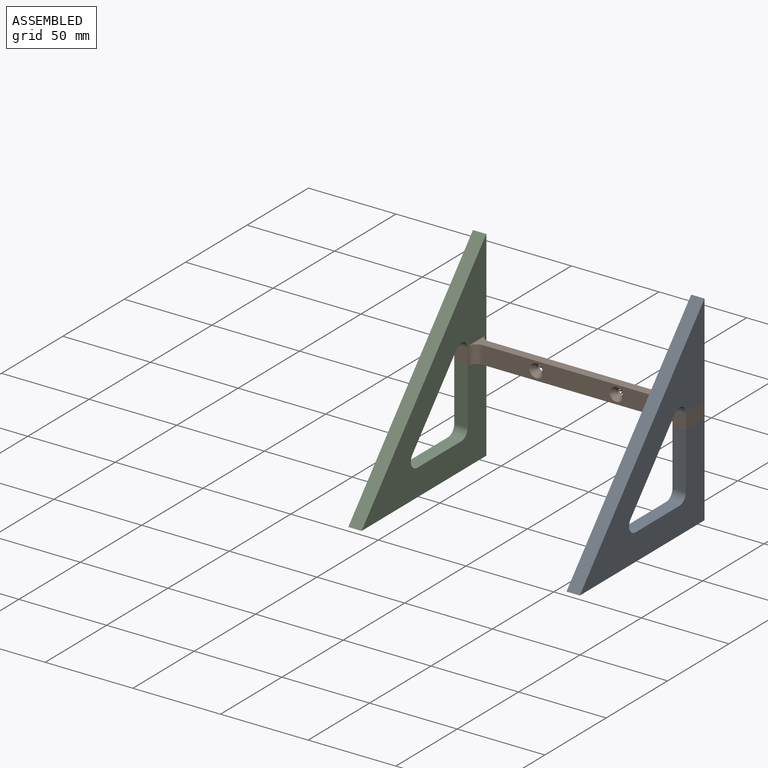
[diagram: assembled view]
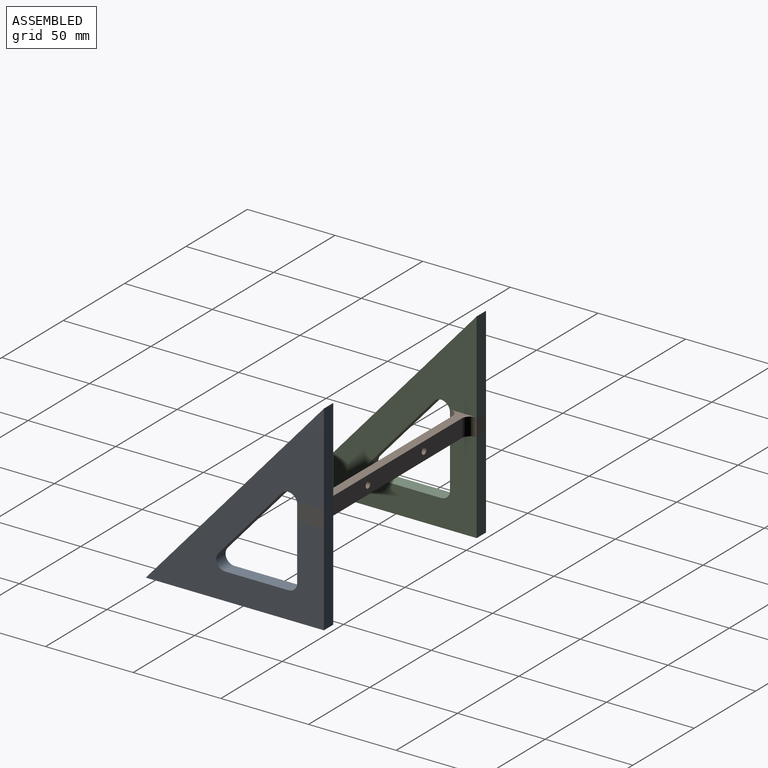
[diagram: assembled view, second angle]
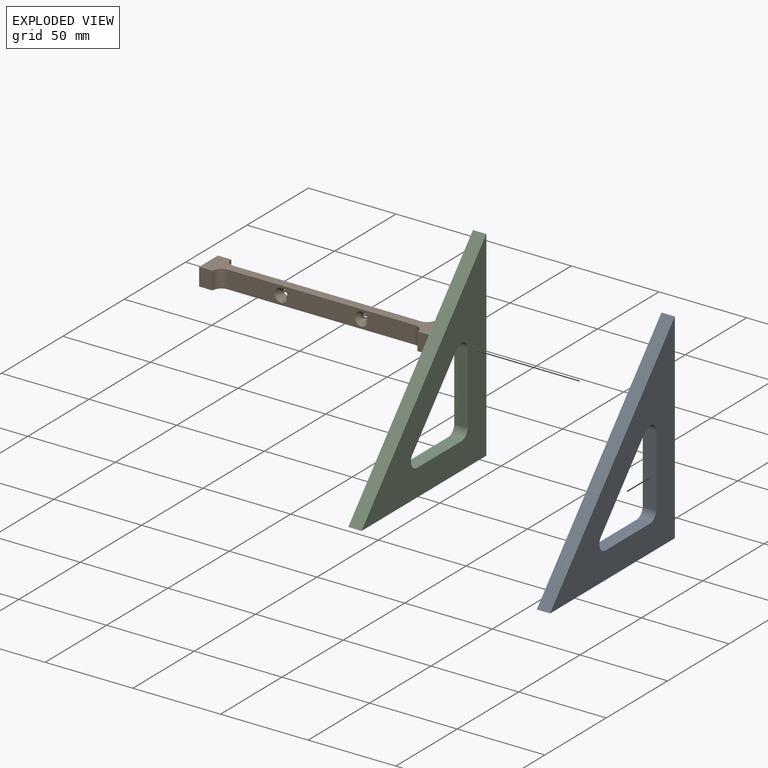
[diagram: exploded view]
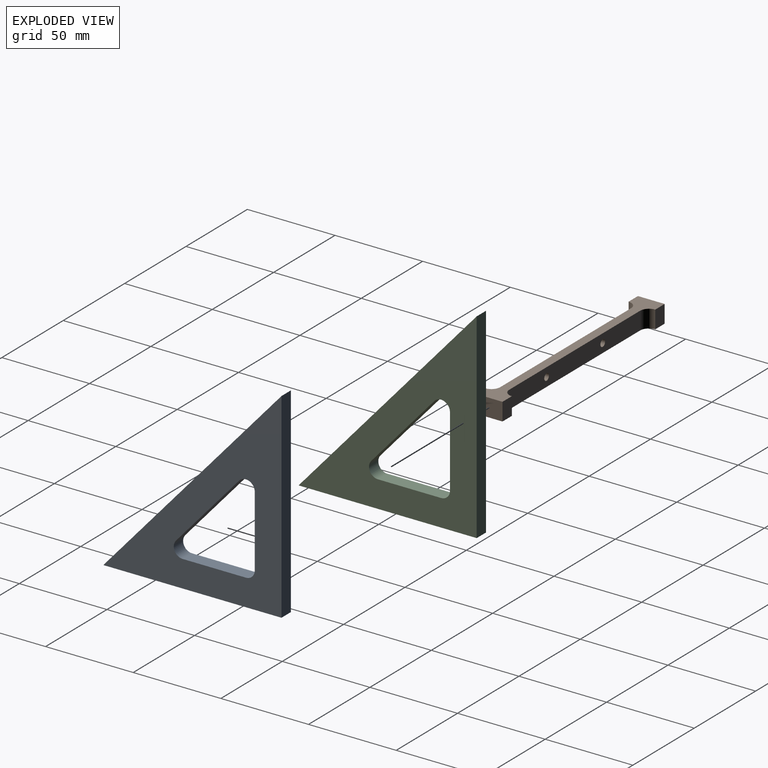
[diagram: exploded view, second angle]
ASSEMBLY  parts=3 mates=2
PART A: 11 faces, bbox 7.6x101.6x114.3 mm
  f0: plane 36.03x7.62mm, normal (0,0,-1), area 274.6mm2, adj f6,f7,f8,f10
  f1: plane 40.53x36.03mm, normal (0,-0.75,0.66), area 413.3mm2, adj f6,f7,f8,f9
  f2: plane 114.3x7.62mm, normal (0,-1,0), area 871mm2, adj f3,f4,f6,f7
  f3: plane 114.3x101.6mm, normal (0,0.75,-0.66), area 1165.3mm2, adj f2,f4,f6,f7
  f4: plane 101.6x7.62mm, normal (0,0,1), area 774.2mm2, adj f2,f3,f6,f7
  f5: plane 40.53x7.62mm, normal (0,1,0), area 308.9mm2, adj f6,f7,f9,f10
  f6: plane 114.3x101.6mm, normal (1,0,0), area 4330.7mm2, adj f0,f1,f2,f3,f4,f5,f8,f9
  f7: plane 114.3x101.6mm, normal (-1,0,0), area 4330.7mm2, adj f0,f1,f2,f3,f4,f5,f8,f9
  f8: cylinder r=5.08mm len=8.46mm, axis (1,0,0), area 88.9mm2, adj f0,f1,f6,f7
  f9: cylinder r=5.08mm len=8.88mm, axis (1,0,0), area 93.5mm2, adj f1,f5,f6,f7
  f10: cylinder r=5.08mm len=7.62mm, axis (1,0,0), area 60.8mm2, adj f0,f5,f6,f7
PART B: 18 faces, bbox 132.1x15.2x10.2 mm
  f0: plane 132.08x15.24mm, normal (0,0,-1), area 848mm2, adj f2,f3,f4,f5,f6,f7,f12,f13
  f1: plane 132.08x15.24mm, normal (0,0,1), area 848mm2, adj f2,f3,f4,f5,f6,f7,f12,f13
  f2: cylinder r=5.08mm len=10.16mm, axis (0,0,-1), area 81.1mm2, adj f0,f1,f3,f13
  f3: plane 106.68x10.16mm, normal (0,-1,0), area 992.7mm2, adj f0,f1,f2,f4,f9,f11
  f4: cylinder r=5.08mm len=10.16mm, axis (0,0,-1), area 81.1mm2, adj f0,f1,f3,f16
  f5: cylinder r=5.08mm len=10.16mm, axis (0,0,-1), area 81.1mm2, adj f0,f1,f6,f12
  f6: plane 106.68x10.16mm, normal (0,1,0), area 1061.1mm2, adj f0,f1,f5,f7,f8,f10
  f7: cylinder r=5.08mm len=10.16mm, axis (0,0,-1), area 81.1mm2, adj f0,f1,f6,f15
  f8: cylinder r=1.91mm len=3.81mm, axis (0,-1,0), area 31.1mm2, adj f6,f9
  f9: cone r=1.91mm half-angle=37.5deg, axis (0,-1,0), area 56.2mm2, adj f3,f8
  f10: cylinder r=1.91mm len=3.81mm, axis (0,-1,0), area 31.1mm2, adj f6,f11
  f11: cone r=1.91mm half-angle=37.5deg, axis (0,-1,0), area 56.2mm2, adj f3,f10
  f12: plane 10.16x7.62mm, normal (0,1,0), area 77.4mm2, adj f0,f1,f5,f14
  f13: plane 10.16x7.62mm, normal (0,-1,0), area 77.4mm2, adj f0,f1,f2,f14
  f14: plane 15.24x10.16mm, normal (-1,0,0), area 154.8mm2, adj f0,f1,f12,f13
  f15: plane 10.16x7.62mm, normal (0,1,0), area 77.4mm2, adj f0,f1,f7,f17
  f16: plane 10.16x7.62mm, normal (0,-1,0), area 77.4mm2, adj f0,f1,f4,f17
  f17: plane 15.24x10.16mm, normal (1,0,0), area 154.8mm2, adj f0,f1,f15,f16
PART C: same geometry as A
PLACE A rot(axis=(-1,0,0),180deg) t=(58.42,6.35,0)mm
PLACE B at identity
PLACE C rot(axis=(-1,0,0),180deg) t=(-66.04,6.35,0)mm
MATE fastened A.f2 <-> B.f15  axis (0,1,0) through (62.23,0,0)mm
MATE fastened C.f2 <-> B.f12  axis (0,1,0) through (-62.23,0,0)mm
